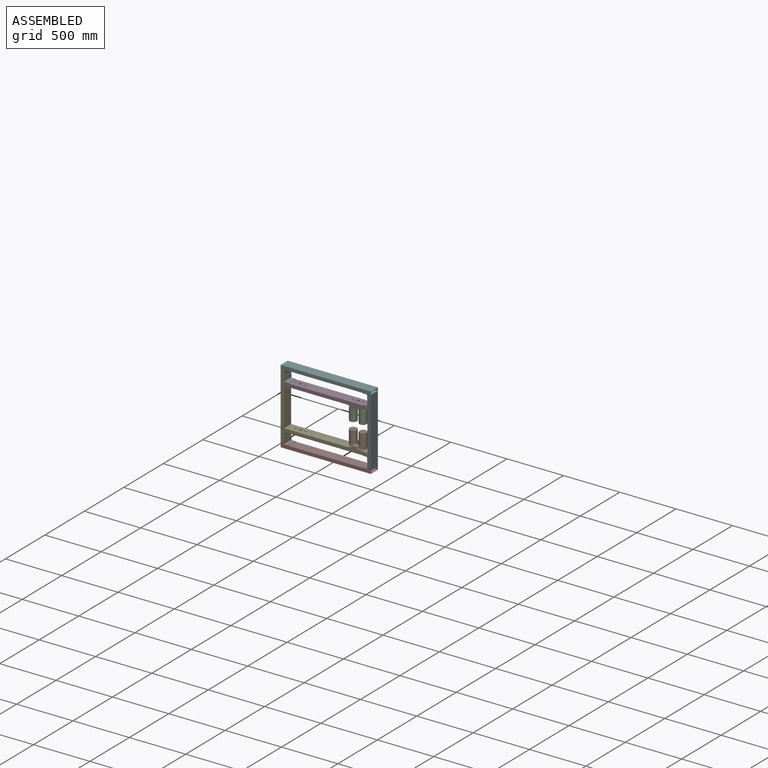
[diagram: assembled view]
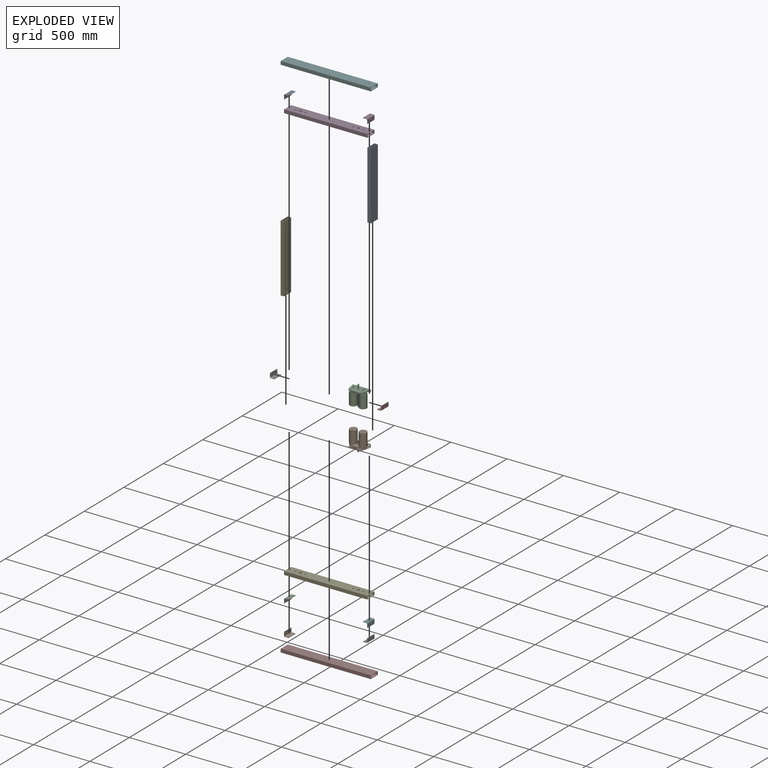
[diagram: exploded view]
GUIDED TOUR — MATED ASSEMBLY WITH SUBASSEMBLIES (Onshape document c86a4f6575f6017475b67a72, AutoMate assembly c86a4f6575f6017475b67a72_9b0eb808f1c5a23047f3c96d_129d4300e8e7a1c445e2efac_default)

This assembly has 30 component occurrences arranged in 16 top-level units: 14 individual components plus 2 subassemblies (S0, S1). The tour has two levels: first the top level, where each subassembly is treated as one rigid unit; then each subassembly is toured internally in its own section (nesting deeper than one subassembly level is flattened into its subassembly's section).

Components are labeled P0..P29 across the whole record; subassembly units are labeled S0..S1. A mate is a constraint between two units; its type names the relative motion it leaves free:
  FASTENED — locks the two components together rigidly (no relative motion).
Axis/direction vectors are unit vectors and 'through' points are millimeter coordinates, both in the assembly's world frame.

TOP-LEVEL MATES (between units; each subassembly's internal mates are listed in its own section)
  1. FASTENED "Fastened 5": P25 <-> P24, direction (0.000, 0.000, 1.000) through (-180.54, -116.82, -42.28) mm
  2. FASTENED "Fastened 12": P10 <-> P3, direction (0.000, 0.000, -1.000) through (-180.54, -116.82, 357.72) mm
  3. FASTENED "Fastened 6": P19 <-> P24, direction (0.000, 0.000, 1.000) through (-856.54, -116.82, -42.28) mm
  4. FASTENED "Fastened 4": P28 <-> P8, direction (0.000, 0.000, 1.000) through (-180.54, -116.82, -142.28) mm
  5. FASTENED "Fastened 9": P5 <-> P11, direction (0.000, 0.000, -1.000) through (-856.54, -116.82, 457.72) mm
  6. FASTENED "Fastened 7": P18 <-> P28, direction (0.000, 0.000, -1.000) through (-856.54, -116.82, -142.28) mm
  7. FASTENED "Fastened 11": S1 <-> P3, direction (0.000, 0.000, 1.000) through (-233.22, -117.31, 327.72) mm
  8. FASTENED "Fastened 13": P27 <-> P3, direction (0.000, 0.000, -1.000) through (-856.54, -116.82, 357.72) mm
  9. FASTENED "Fastened 3": P4 <-> P5, direction (0.000, 0.000, 1.000) through (-918.54, -108.82, 457.72) mm
  10. FASTENED "Fastened 8": P5 <-> P23, direction (0.000, 0.000, -1.000) through (-180.54, -116.82, 457.72) mm
  11. FASTENED "Fastened 10": P24 <-> S0, direction (0.000, 0.000, 1.000) through (-233.22, -117.31, -12.28) mm
  12. FASTENED "Fastened 1": P0 <-> P28, direction (0.000, 0.000, -1.000) through (-118.54, -108.82, -142.28) mm
  13. FASTENED "Fastened 2": P28 <-> P4, direction (0.000, 0.000, 1.000) through (-918.54, -108.82, -142.28) mm

TOP-LEVEL ASSEMBLY ORDER
  1. S0 — the base component [order heuristic]
  2. S1 — core [order heuristic]
  3. P3 — core [order heuristic]
  4. P5 [order verified]
  5. P19 [order verified]
  6. P25 [order verified]
  7. P8 [order verified]
  8. P18 [order verified]
  9. P0 [order verified]
  10. P4 [order verified]
  11. P27 [order verified]
  12. P10 [order verified]
  13. P23 [order verified]
  14. P11 [order verified]
  15. P24 — core [order heuristic]
  16. P28 [order verified]
Order-tag legend:
  [order verified] — this step's position reverses a verified removal order: the component was checked to insert without passing through the ones already placed.
  [order heuristic] — the first 4 components form the assembly's core: parts whose collision-free extraction could not be verified, listed in mate-graph order.

Of the 30 component occurrences, 8 carry the full construction recipe — the FeatureScript program that regenerates the part's solid from scratch; the rest are supplied as boundary geometry only. Each toured unit is shown spotlighted twice — assembled, then exploded with a leader line back to its socket (green = recipe-attached component, orange = geometry-only, blue = subassembly unit; the rest desaturated gray).
NOTE — document 3 of 3 of this assembly tour. The two overview renders and the header above are repeated from document 1; the component sections below continue where the previous document stopped.
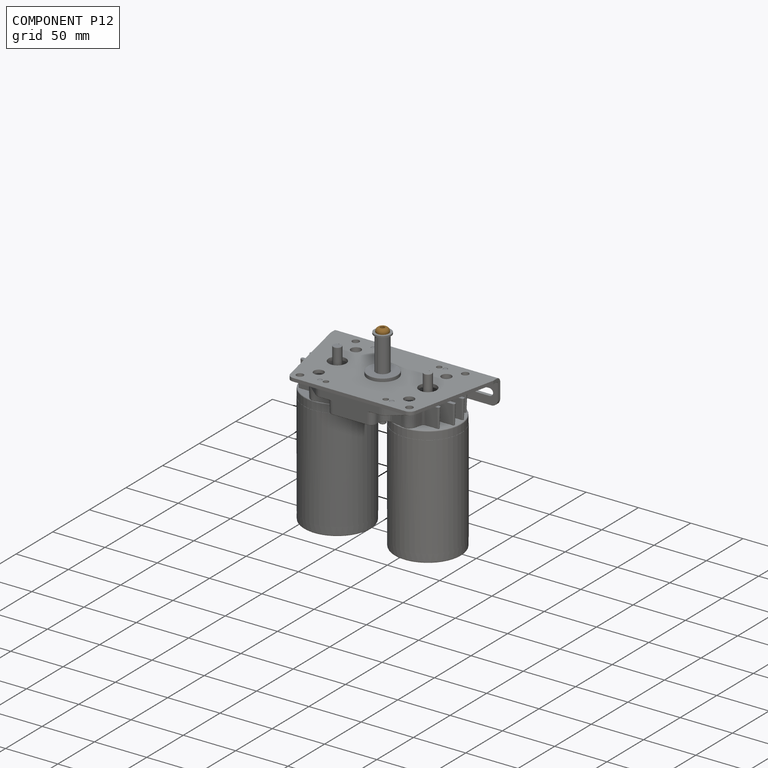
[diagram: component P12 — assembled]
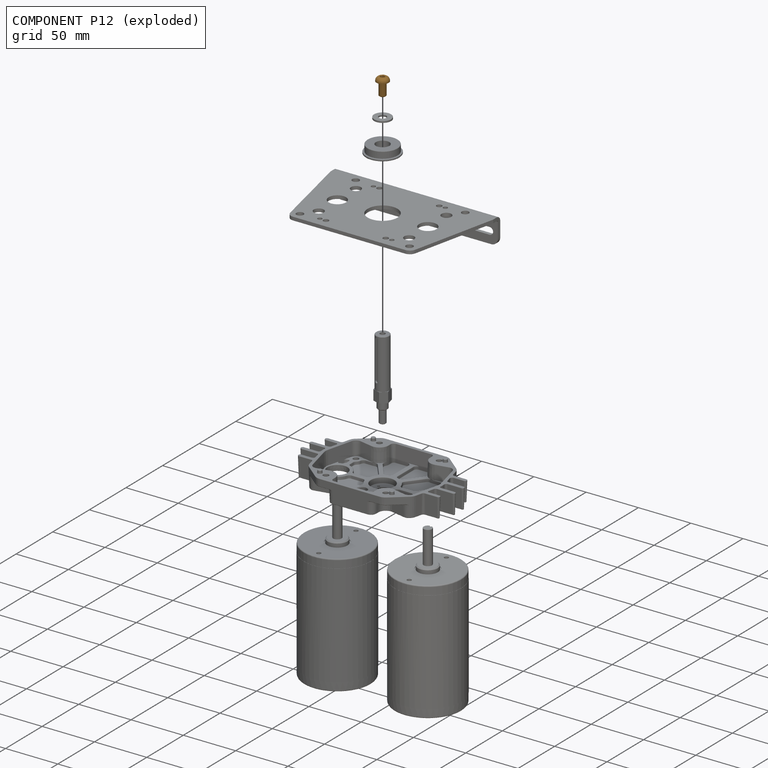
[diagram: component P12 — exploded]
COMPONENT P12 — geometry summary (no construction recipe available for this part):
  bounding box: 16.8 x 11.7 x 11.7 mm
  B-rep topology: 1 solid, 25 faces, 118 edges
  volume: 708 mm^3 (31% of its bounding box)
  symmetry: 6-fold rotationally symmetric about the z axis
Held by: FASTENED mate "Fastened 5" to P2; FASTENED mate "Fastened 5" to P2.
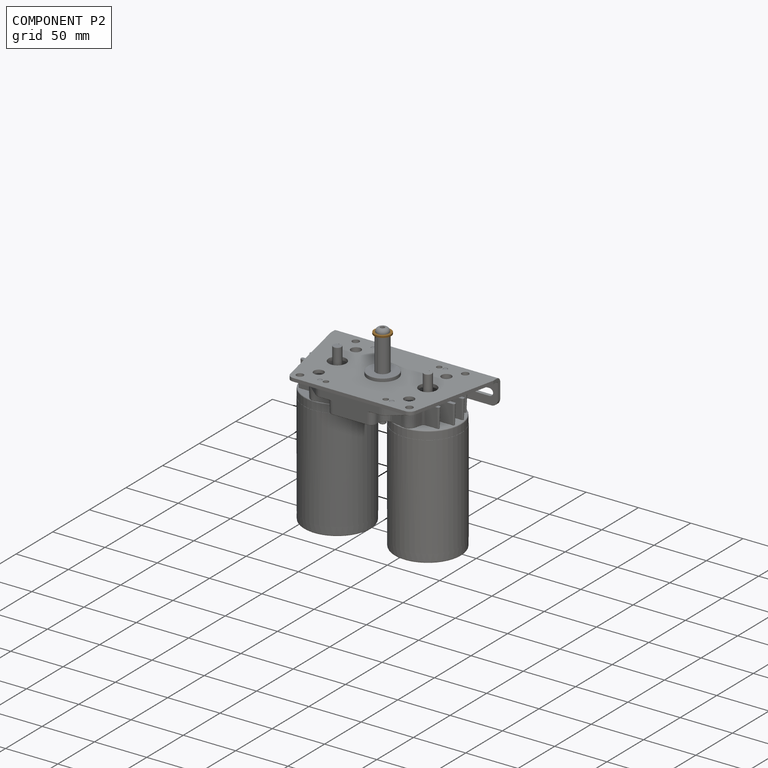
[diagram: component P2 — assembled]
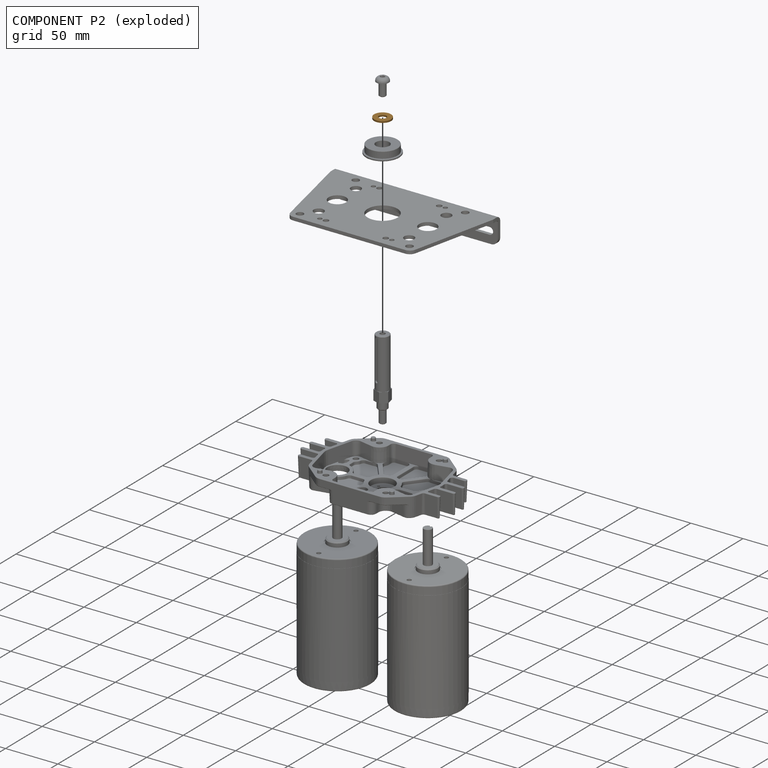
[diagram: component P2 — exploded]
COMPONENT P2 — geometry summary (no construction recipe available for this part):
  bounding box: 16.3 x 16.3 x 1.6 mm
  B-rep topology: 1 solid, 4 faces, 12 edges
  volume: 264 mm^3 (64% of its bounding box)
  symmetry: 2-fold rotationally symmetric about the x axis; 2-fold rotationally symmetric about the y axis; revolution-symmetric about the z axis through its bounding-box center; mirror-symmetric across its x mid-plane, y mid-plane, z mid-plane
Held by: FASTENED mate "Fastened 4" to P14; FASTENED mate "Fastened 5" to P12; FASTENED mate "Fastened 4" to P14; FASTENED mate "Fastened 5" to P12.
PROVENANCE & LICENSES
Assembly (occurrences, transforms, mates, per-part STEP geometry): AutoMate dataset, Zenodo record 7776208, CC0.
Construction recipes: CADFS (HuggingFace VladPyatov/CADFS, CC-BY-4.0, layered over the ABC dataset), FeatureScript reconstruction programs keyed by ABC model id.
Join: ABC meta listings map ABC model id -> Onshape documentId; within a shared document, parts are matched by geometric signature (bounding-box dims + volume at 0.1% relative tolerance, exact B-rep face/solid counts).
Verification: 8 of this assembly's 30 components carry a recipe attachment, and every attachment is mesh-verified: the CADFS STEP and the AutoMate member STEP were compared as meshes in their shared local frame (symmetric sampled-point-to-mesh distance); worst across the 8 attachments: below the mesh-comparison resolution (tessellation chordal tolerance ~0.159 mm) on a 106 mm part.
Renders: orthographic iso camera (az 35 / el 25); the floor grid conveys scale (grid pitch printed in each image; no ruler). In the exploded view each component is displaced by its stored offset vector: the offsets alone carry the explosion direction (mate normal/axis signs are not orientation cues and do not encode it), and separation distances are assigned per mate-chain, not proportionally to assembly-order depth.
